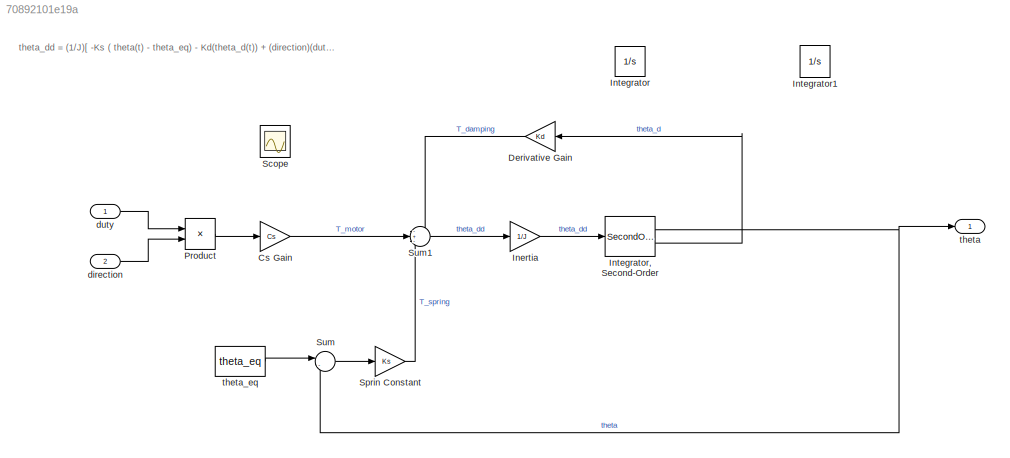
MODEL slx_70892101e19a
KIND model
CONFIG AbsTol = auto
CONFIG EnableMultiTasking = off
CONFIG FixedStep = auto
CONFIG MaxStep = auto
CONFIG MinStep = auto
CONFIG PreLoadFcn = load throttle_input;\netc_plant_data;\n% etc_plant_data_limit;
CONFIG RelTol = 1e-3
CONFIG SampleTimeConstraint = Unconstrained
CONFIG Solver = VariableStepAuto
CONFIG SolverName = VariableStepAuto
CONFIG StartTime = 0.0
CONFIG StopTime = 10.0
BLOCK [Gain] Cs Gain
  Gain = Cs
  OutDataTypeStr = Inherit: Inherit via internal rule
  ParamDataTypeStr = Inherit: Inherit via internal rule
  SaturateOnIntegerOverflow = off
BLOCK [Gain] Derivative Gain
  Gain = Kd
  OutDataTypeStr = Inherit: Inherit via internal rule
  ParamDataTypeStr = Inherit: Inherit via internal rule
  SaturateOnIntegerOverflow = off
BLOCK [Gain] Inertia 
  Gain = 1/J
  OutDataTypeStr = Inherit: Inherit via internal rule
  ParamDataTypeStr = Inherit: Inherit via internal rule
  SaturateOnIntegerOverflow = off
BLOCK [Integrator] Integrator
  Ports = [1, 1]
BLOCK [SecondOrderIntegrator] Integrator, Second-Order
  ICX = pi/6
  LimitX = on
  LowerLimitX = 0
  Ports = [1, 2]
  ReinitDXDTwhenXreachesSaturation = on
  UpperLimitX = pi/2
BLOCK [Integrator] Integrator1
  InitialCondition = pi/6
  LimitOutput = on
  LowerSaturationLimit = 0
  Ports = [1, 1]
  UpperSaturationLimit = pi/2
BLOCK [Product] Product
  InputSameDT = off
  OutDataTypeStr = Inherit: Inherit via internal rule
  Ports = [2, 1]
  RndMeth = Floor
  SaturateOnIntegerOverflow = off
BLOCK [Scope] Scope
  IOType = viewer
  NumInputPorts = 1
  Ports = []
  ScopeSpecificationString = Simulink.scopes.TimeScopeBlockCfg('CurrentConfiguration', extmgr.ConfigurationSet(extmgr.Configuration('Core','General UI',true),extmgr.Configuration('Core','Source UI',true),extmgr.Configuration('Sources','WiredSimulink',true),extmgr.Configuration('Visuals','Time Domain',true,'SerializedDisplays',{struct('MinYLimReal','-1.24518','MaxYLimReal','1.88368','YLabelReal','','MinYLimMag','0.00000','MaxY...<+3061ch>
BLOCK [Gain] Sprin Constant
  Gain = Ks
  OutDataTypeStr = Inherit: Inherit via internal rule
  ParamDataTypeStr = Inherit: Inherit via internal rule
  SaturateOnIntegerOverflow = off
BLOCK [Sum] Sum
  IconShape = round
  InputSameDT = off
  Inputs = |-+
  OutDataTypeStr = Inherit: Inherit via internal rule
  Ports = [2, 1]
  SaturateOnIntegerOverflow = off
BLOCK [Sum] Sum1
  IconShape = round
  InputSameDT = off
  Inputs = -+-
  OutDataTypeStr = Inherit: Inherit via internal rule
  Ports = [3, 1]
  SaturateOnIntegerOverflow = off
BLOCK [Inport] direction
  IconDisplay = Port number
  Port = 2
BLOCK [Inport] duty
  IconDisplay = Port number
BLOCK [Outport] theta
  IconDisplay = Port number
BLOCK [Constant] theta_eq 
  Value = theta_eq
ANNOTATION (root): theta_dd = (1/J)[ -Ks ( theta(t) - theta_eq) - Kd(theta_d(t)) + (direction)(duty)Cs]
LINE Cs Gain:1 -> Sum1:2
LINE Derivative Gain:1 -> Sum1:1
LINE Inertia :1 -> Integrator, Second-Order:1
NET Integrator, Second-Order:1 -> Sum:2, theta:1
LINE Integrator, Second-Order:2 -> Derivative Gain:1
LINE Product:1 -> Cs Gain:1
LINE Sprin Constant:1 -> Sum1:3
LINE Sum1:1 -> Inertia :1
LINE Sum:1 -> Sprin Constant:1
LINE direction:1 -> Product:2
LINE duty:1 -> Product:1
LINE theta_eq :1 -> Sum:1
note: NET lines group one-source signal fan-out (src -> all destinations, sorted); 1:1 wires keep LINE
